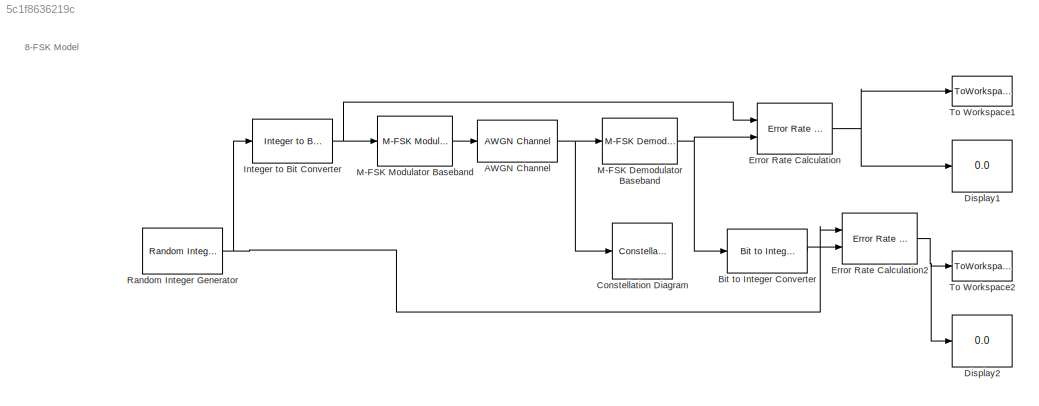
MODEL slx_5c1f8636219c
KIND model
CONFIG AbsTol = auto
CONFIG EnableMultiTasking = on
CONFIG FixedStep = auto
CONFIG MaxStep = auto
CONFIG MinStep = auto
CONFIG RelTol = 1e-3
CONFIG SampleTimeConstraint = Unconstrained
CONFIG Solver = VariableStepDiscrete
CONFIG SolverName = VariableStepDiscrete
CONFIG StartTime = 0.0
CONFIG StopTime = 250
BLOCK [Reference] AWGN Channel  REF=commchan3/AWGN
Channel
  Ports = [1, 1]
  SourceBlock = commchan3/AWGN\nChannel
  SourceProductBaseCode = CM
  SourceProductName = Communications System Toolbox
  SourceType = AWGN Channel
  UserDataPersistent = on
BLOCK [Reference] Bit to Integer Converter  REF=commutil2/Bit to Integer
Converter
  Ports = [1, 1]
  SourceBlock = commutil2/Bit to Integer\nConverter
  SourceProductBaseCode = CM
  SourceProductName = Communications System Toolbox
  SourceType = Bit to Integer Converter
BLOCK [ConstellationDiagram] Constellation Diagram
  Ports = [1]
  ScopeSpecificationString = comm.scopes.ConstellationDiagramBlockCfg('CurrentConfiguration', extmgr.ConfigurationSet(extmgr.Configuration('Core','General UI',true),extmgr.Configuration('Core','Source UI',true),extmgr.Configuration('Sources','WiredSimulink',true),extmgr.Configuration('Sources','SimulinkEvent',false),extmgr.Configuration('Sources','Simulink',false),extmgr.Configuration('Sources','SPTool',false),extmgr.Configur...<+2136ch>
BLOCK [Display] Display1
  Decimation = 1
  Ports = [1]
BLOCK [Display] Display2
  Decimation = 1
  Ports = [1]
BLOCK [Reference] Error Rate Calculation  REF=commsink2/Error Rate
Calculation
  Ports = [2, 1]
  SourceBlock = commsink2/Error Rate\nCalculation
  SourceProductBaseCode = CM
  SourceProductName = Communications System Toolbox
  SourceType = Error Rate Calculation
BLOCK [Reference] Error Rate Calculation2  REF=commsink2/Error Rate
Calculation
  Ports = [2, 1]
  SourceBlock = commsink2/Error Rate\nCalculation
  SourceProductBaseCode = CM
  SourceProductName = Communications System Toolbox
  SourceType = Error Rate Calculation
BLOCK [Reference] Integer to Bit Converter  REF=commutil2/Integer to Bit
Converter
  Ports = [1, 1]
  SourceBlock = commutil2/Integer to Bit\nConverter
  SourceProductBaseCode = CM
  SourceProductName = Communications System Toolbox
  SourceType = Integer to Bit Converter
BLOCK [Reference] M-FSK Demodulator Baseband  REF=commdigbbndfm2/M-FSK
Demodulator
Baseband
  Ports = [1, 1]
  SourceBlock = commdigbbndfm2/M-FSK\nDemodulator\nBaseband
  SourceProductBaseCode = CM
  SourceProductName = Communications System Toolbox
  SourceType = M-FSK Demodulator Baseband
  UserDataPersistent = on
BLOCK [Reference] M-FSK Modulator Baseband  REF=commdigbbndfm2/M-FSK
Modulator
Baseband
  Ports = [1, 1]
  SourceBlock = commdigbbndfm2/M-FSK\nModulator\nBaseband
  SourceProductBaseCode = CM
  SourceProductName = Communications System Toolbox
  SourceType = M-FSK Modulator Baseband
  UserDataPersistent = on
BLOCK [Reference] Random Integer Generator  REF=commrandsrc3/Random Integer
Generator
  Ports = [0, 1]
  SourceBlock = commrandsrc3/Random Integer\nGenerator
  SourceProductBaseCode = CM
  SourceProductName = Communications System Toolbox
  SourceType = Random Integer Generator
BLOCK [ToWorkspace] To Workspace1
  MaxDataPoints = 1
  Ports = [1]
  SampleTime = -1
  Save2DSignal = 2-D array (concatenate along first dimension)
  VariableName = FSK8_BER
BLOCK [ToWorkspace] To Workspace2
  MaxDataPoints = 1
  Ports = [1]
  SampleTime = -1
  Save2DSignal = 2-D array (concatenate along first dimension)
  VariableName = FSK8_SER
ANNOTATION (root): 8-FSK Model
NET AWGN Channel:1 -> Constellation Diagram:1, M-FSK Demodulator Baseband:1
LINE Bit to Integer Converter:1 -> Error Rate Calculation2:2
NET Error Rate Calculation2:1 -> Display2:1, To Workspace2:1
NET Error Rate Calculation:1 -> Display1:1, To Workspace1:1
NET Integer to Bit Converter:1 -> Error Rate Calculation:1, M-FSK Modulator Baseband:1
NET M-FSK Demodulator Baseband:1 -> Bit to Integer Converter:1, Error Rate Calculation:2
LINE M-FSK Modulator Baseband:1 -> AWGN Channel:1
NET Random Integer Generator:1 -> Error Rate Calculation2:1, Integer to Bit Converter:1
note: NET lines group one-source signal fan-out (src -> all destinations, sorted); 1:1 wires keep LINE
